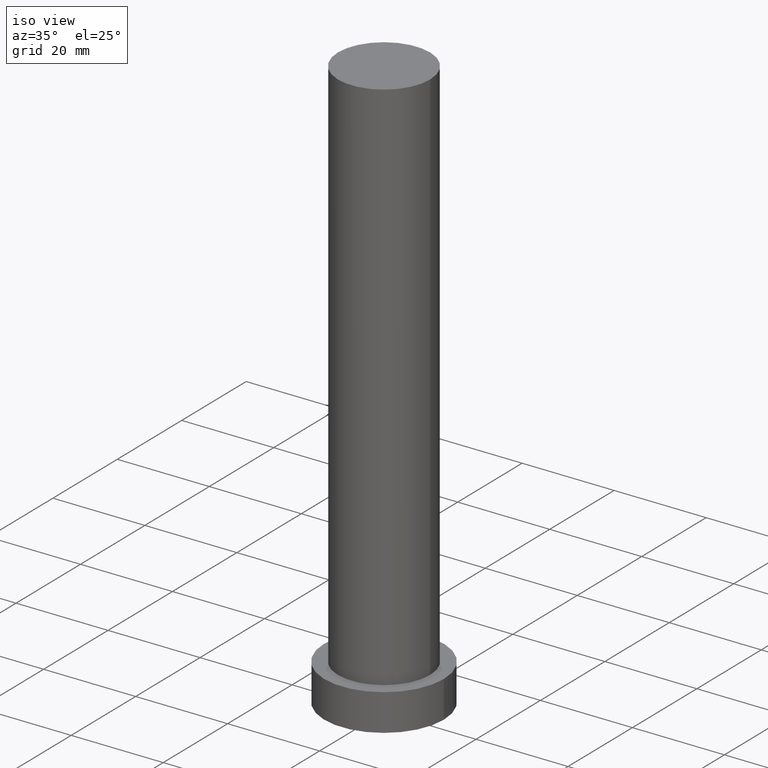
[diagram: clean part render]
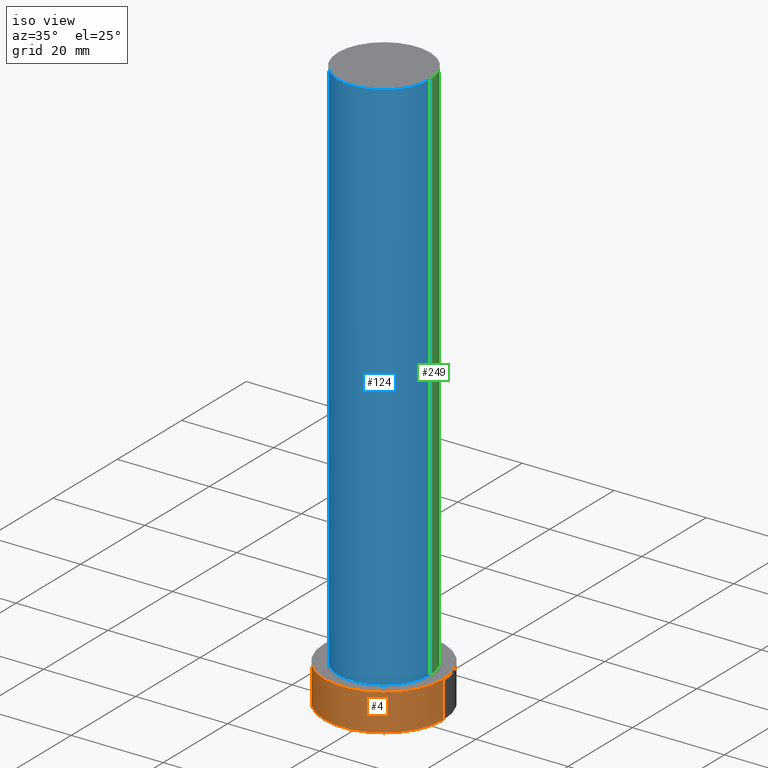
[diagram: same view with three faces highlighted in distinct colors, each labeled with its STEP entity id]
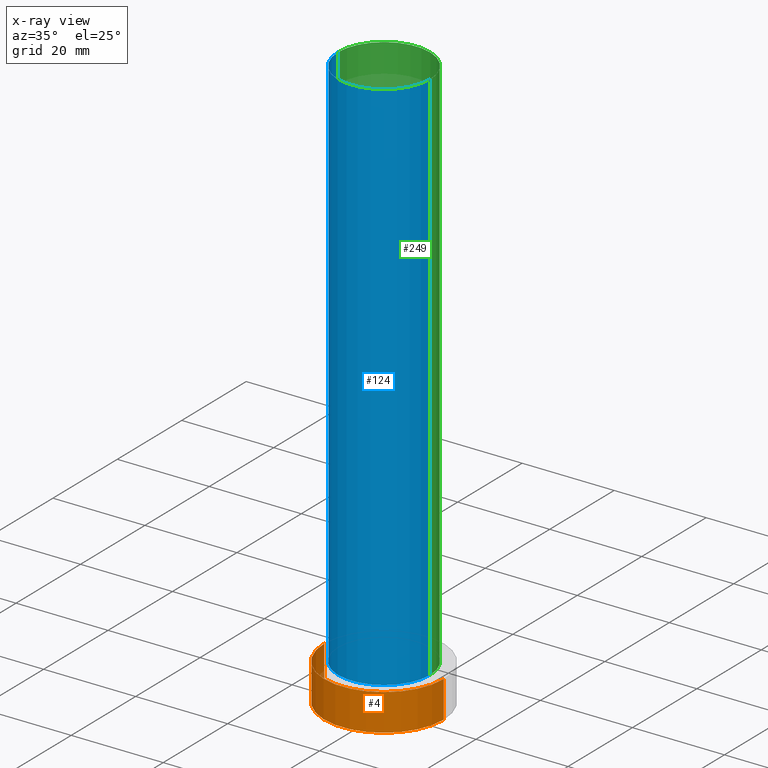
[diagram: x-ray of the same camera — body ghosted, the three highlighted faces saturated]
A machine part, iso view with three faces highlighted in distinct colors.
The next image is the same camera in x-ray (body ghosted, the three faces saturated) — at least one of them is partly hidden behind the body in this view.
Their STEP definitions:

[orange] entity #4 — the highlighted cylindrical surface (partial cylindrical patch) has radius 13 mm, axis along (-0, -0, -1).
#4 = ADVANCED_FACE ( 'NONE', ( #33 ), #31, .T. ) ;
#9 = ORIENTED_EDGE ( 'NONE', *, *, #56, .T. ) ;
#13 = CARTESIAN_POINT ( 'NONE',  ( 13.00000000000000178, 1.592040838891559293E-15, 0.000000000000000000 ) ) ;
#17 = DIRECTION ( 'NONE',  ( -0.000000000000000000, -0.000000000000000000, -1.000000000000000000 ) ) ;
#22 = EDGE_LOOP ( 'NONE', ( #238, #144, #9, #126 ) ) ;
#31 = CYLINDRICAL_SURFACE ( 'NONE', #170, 13.00000000000000178 ) ;
#33 = FACE_OUTER_BOUND ( 'NONE', #22, .T. ) ;
#35 = EDGE_CURVE ( 'NONE', #200, #111, #133, .T. ) ;
#38 = LINE ( 'NONE', #244, #179 ) ;
#39 = AXIS2_PLACEMENT_3D ( 'NONE', #97, #177, #254 ) ;
#42 = VERTEX_POINT ( 'NONE', #169 ) ;
#50 = DIRECTION ( 'NONE',  ( 0.000000000000000000, 0.000000000000000000, 1.000000000000000000 ) ) ;
#53 = CARTESIAN_POINT ( 'NONE',  ( 13.00000000000000178, 1.592040838891559293E-15, 8.000000000000000000 ) ) ;
#56 = EDGE_CURVE ( 'NONE', #143, #42, #38, .T. ) ;
#69 = DIRECTION ( 'NONE',  ( -1.000000000000000000, 0.000000000000000000, 0.000000000000000000 ) ) ;
#71 = CARTESIAN_POINT ( 'NONE',  ( 0.000000000000000000, 0.000000000000000000, 8.000000000000000000 ) ) ;
#85 = CARTESIAN_POINT ( 'NONE',  ( 13.00000000000000178, 1.592040838891559293E-15, 8.000000000000000000 ) ) ;
#92 = VECTOR ( 'NONE', #202, 1000.000000000000000 ) ;
#97 = CARTESIAN_POINT ( 'NONE',  ( 0.000000000000000000, 0.000000000000000000, 0.000000000000000000 ) ) ;
#102 = CIRCLE ( 'NONE', #123, 13.00000000000000178 ) ;
#111 = VERTEX_POINT ( 'NONE', #13 ) ;
#113 = CARTESIAN_POINT ( 'NONE',  ( 0.000000000000000000, 0.000000000000000000, 8.000000000000000000 ) ) ;
#123 = AXIS2_PLACEMENT_3D ( 'NONE', #71, #50, #230 ) ;
#126 = ORIENTED_EDGE ( 'NONE', *, *, #215, .T. ) ;
#133 = LINE ( 'NONE', #85, #92 ) ;
#134 = CIRCLE ( 'NONE', #39, 13.00000000000000178 ) ;
#143 = VERTEX_POINT ( 'NONE', #225 ) ;
#144 = ORIENTED_EDGE ( 'NONE', *, *, #167, .F. ) ;
#166 = DIRECTION ( 'NONE',  ( -0.000000000000000000, -0.000000000000000000, -1.000000000000000000 ) ) ;
#167 = EDGE_CURVE ( 'NONE', #143, #200, #102, .T. ) ;
#169 = CARTESIAN_POINT ( 'NONE',  ( -13.00000000000000178, 0.000000000000000000, 0.000000000000000000 ) ) ;
#170 = AXIS2_PLACEMENT_3D ( 'NONE', #113, #166, #69 ) ;
#177 = DIRECTION ( 'NONE',  ( 0.000000000000000000, 0.000000000000000000, 1.000000000000000000 ) ) ;
#179 = VECTOR ( 'NONE', #17, 1000.000000000000000 ) ;
#200 = VERTEX_POINT ( 'NONE', #53 ) ;
#202 = DIRECTION ( 'NONE',  ( -0.000000000000000000, -0.000000000000000000, -1.000000000000000000 ) ) ;
#215 = EDGE_CURVE ( 'NONE', #42, #111, #134, .T. ) ;
#225 = CARTESIAN_POINT ( 'NONE',  ( -13.00000000000000178, 0.000000000000000000, 8.000000000000000000 ) ) ;
#230 = DIRECTION ( 'NONE',  ( 1.000000000000000000, 0.000000000000000000, 0.000000000000000000 ) ) ;
#238 = ORIENTED_EDGE ( 'NONE', *, *, #35, .F. ) ;
#244 = CARTESIAN_POINT ( 'NONE',  ( -13.00000000000000178, 0.000000000000000000, 8.000000000000000000 ) ) ;
#254 = DIRECTION ( 'NONE',  ( 1.000000000000000000, 0.000000000000000000, 0.000000000000000000 ) ) ;

[blue] entity #124 — the highlighted cylindrical surface (partial cylindrical patch) has radius 10 mm, axis along (-0, -0, -1).
#2 = EDGE_LOOP ( 'NONE', ( #243, #43, #219, #7 ) ) ;
#7 = ORIENTED_EDGE ( 'NONE', *, *, #84, .T. ) ;
#19 = LINE ( 'NONE', #158, #231 ) ;
#21 = AXIS2_PLACEMENT_3D ( 'NONE', #189, #32, #233 ) ;
#27 = VERTEX_POINT ( 'NONE', #114 ) ;
#32 = DIRECTION ( 'NONE',  ( 0.000000000000000000, 0.000000000000000000, 1.000000000000000000 ) ) ;
#43 = ORIENTED_EDGE ( 'NONE', *, *, #78, .F. ) ;
#64 = VERTEX_POINT ( 'NONE', #204 ) ;
#66 = CIRCLE ( 'NONE', #206, 10.00000000000000000 ) ;
#73 = DIRECTION ( 'NONE',  ( -0.000000000000000000, -0.000000000000000000, -1.000000000000000000 ) ) ;
#74 = LINE ( 'NONE', #157, #241 ) ;
#76 = DIRECTION ( 'NONE',  ( -1.000000000000000000, 0.000000000000000000, 0.000000000000000000 ) ) ;
#77 = DIRECTION ( 'NONE',  ( -0.000000000000000000, -0.000000000000000000, -1.000000000000000000 ) ) ;
#78 = EDGE_CURVE ( 'NONE', #64, #218, #66, .T. ) ;
#83 = AXIS2_PLACEMENT_3D ( 'NONE', #90, #73, #76 ) ;
#84 = EDGE_CURVE ( 'NONE', #104, #27, #240, .T. ) ;
#87 = CYLINDRICAL_SURFACE ( 'NONE', #83, 10.00000000000000000 ) ;
#90 = CARTESIAN_POINT ( 'NONE',  ( 0.000000000000000000, 0.000000000000000000, 125.0000000000000000 ) ) ;
#104 = VERTEX_POINT ( 'NONE', #136 ) ;
#114 = CARTESIAN_POINT ( 'NONE',  ( 10.00000000000000000, 1.224646799147353256E-15, 8.000000000000000000 ) ) ;
#117 = EDGE_CURVE ( 'NONE', #64, #104, #74, .T. ) ;
#124 = ADVANCED_FACE ( 'NONE', ( #171 ), #87, .T. ) ;
#136 = CARTESIAN_POINT ( 'NONE',  ( -10.00000000000000000, 0.000000000000000000, 8.000000000000000000 ) ) ;
#138 = CARTESIAN_POINT ( 'NONE',  ( 0.000000000000000000, 0.000000000000000000, 125.0000000000000000 ) ) ;
#148 = DIRECTION ( 'NONE',  ( 0.000000000000000000, 0.000000000000000000, 1.000000000000000000 ) ) ;
#157 = CARTESIAN_POINT ( 'NONE',  ( -10.00000000000000000, 0.000000000000000000, 125.0000000000000000 ) ) ;
#158 = CARTESIAN_POINT ( 'NONE',  ( 10.00000000000000000, 1.224646799147353256E-15, 125.0000000000000000 ) ) ;
#165 = CARTESIAN_POINT ( 'NONE',  ( 10.00000000000000000, 1.224646799147353256E-15, 125.0000000000000000 ) ) ;
#171 = FACE_OUTER_BOUND ( 'NONE', #2, .T. ) ;
#173 = DIRECTION ( 'NONE',  ( 1.000000000000000000, 0.000000000000000000, 0.000000000000000000 ) ) ;
#189 = CARTESIAN_POINT ( 'NONE',  ( 0.000000000000000000, 0.000000000000000000, 8.000000000000000000 ) ) ;
#204 = CARTESIAN_POINT ( 'NONE',  ( -10.00000000000000000, 0.000000000000000000, 125.0000000000000000 ) ) ;
#206 = AXIS2_PLACEMENT_3D ( 'NONE', #138, #148, #173 ) ;
#213 = EDGE_CURVE ( 'NONE', #218, #27, #19, .T. ) ;
#218 = VERTEX_POINT ( 'NONE', #165 ) ;
#219 = ORIENTED_EDGE ( 'NONE', *, *, #117, .T. ) ;
#231 = VECTOR ( 'NONE', #77, 1000.000000000000000 ) ;
#233 = DIRECTION ( 'NONE',  ( 1.000000000000000000, 0.000000000000000000, 0.000000000000000000 ) ) ;
#240 = CIRCLE ( 'NONE', #21, 10.00000000000000000 ) ;
#241 = VECTOR ( 'NONE', #251, 1000.000000000000000 ) ;
#243 = ORIENTED_EDGE ( 'NONE', *, *, #213, .F. ) ;
#251 = DIRECTION ( 'NONE',  ( -0.000000000000000000, -0.000000000000000000, -1.000000000000000000 ) ) ;

[green] entity #249 — the highlighted cylindrical surface (partial cylindrical patch) has radius 10 mm, axis along (-0, -0, -1).
#19 = LINE ( 'NONE', #158, #231 ) ;
#24 = ORIENTED_EDGE ( 'NONE', *, *, #117, .F. ) ;
#27 = VERTEX_POINT ( 'NONE', #114 ) ;
#40 = CIRCLE ( 'NONE', #248, 10.00000000000000000 ) ;
#54 = DIRECTION ( 'NONE',  ( -1.000000000000000000, 0.000000000000000000, 0.000000000000000000 ) ) ;
#60 = DIRECTION ( 'NONE',  ( 0.000000000000000000, 0.000000000000000000, 1.000000000000000000 ) ) ;
#64 = VERTEX_POINT ( 'NONE', #204 ) ;
#74 = LINE ( 'NONE', #157, #241 ) ;
#77 = DIRECTION ( 'NONE',  ( -0.000000000000000000, -0.000000000000000000, -1.000000000000000000 ) ) ;
#82 = CARTESIAN_POINT ( 'NONE',  ( 0.000000000000000000, 0.000000000000000000, 125.0000000000000000 ) ) ;
#89 = DIRECTION ( 'NONE',  ( -0.000000000000000000, -0.000000000000000000, -1.000000000000000000 ) ) ;
#98 = EDGE_CURVE ( 'NONE', #218, #64, #40, .T. ) ;
#104 = VERTEX_POINT ( 'NONE', #136 ) ;
#105 = ORIENTED_EDGE ( 'NONE', *, *, #213, .T. ) ;
#106 = ORIENTED_EDGE ( 'NONE', *, *, #182, .T. ) ;
#114 = CARTESIAN_POINT ( 'NONE',  ( 10.00000000000000000, 1.224646799147353256E-15, 8.000000000000000000 ) ) ;
#117 = EDGE_CURVE ( 'NONE', #64, #104, #74, .T. ) ;
#118 = DIRECTION ( 'NONE',  ( 1.000000000000000000, 0.000000000000000000, 0.000000000000000000 ) ) ;
#136 = CARTESIAN_POINT ( 'NONE',  ( -10.00000000000000000, 0.000000000000000000, 8.000000000000000000 ) ) ;
#139 = DIRECTION ( 'NONE',  ( 1.000000000000000000, 0.000000000000000000, 0.000000000000000000 ) ) ;
#157 = CARTESIAN_POINT ( 'NONE',  ( -10.00000000000000000, 0.000000000000000000, 125.0000000000000000 ) ) ;
#158 = CARTESIAN_POINT ( 'NONE',  ( 10.00000000000000000, 1.224646799147353256E-15, 125.0000000000000000 ) ) ;
#165 = CARTESIAN_POINT ( 'NONE',  ( 10.00000000000000000, 1.224646799147353256E-15, 125.0000000000000000 ) ) ;
#182 = EDGE_CURVE ( 'NONE', #27, #104, #196, .T. ) ;
#185 = EDGE_LOOP ( 'NONE', ( #198, #105, #106, #24 ) ) ;
#188 = AXIS2_PLACEMENT_3D ( 'NONE', #82, #89, #54 ) ;
#196 = CIRCLE ( 'NONE', #236, 10.00000000000000000 ) ;
#198 = ORIENTED_EDGE ( 'NONE', *, *, #98, .F. ) ;
#201 = FACE_OUTER_BOUND ( 'NONE', #185, .T. ) ;
#204 = CARTESIAN_POINT ( 'NONE',  ( -10.00000000000000000, 0.000000000000000000, 125.0000000000000000 ) ) ;
#213 = EDGE_CURVE ( 'NONE', #218, #27, #19, .T. ) ;
#218 = VERTEX_POINT ( 'NONE', #165 ) ;
#229 = CYLINDRICAL_SURFACE ( 'NONE', #188, 10.00000000000000000 ) ;
#231 = VECTOR ( 'NONE', #77, 1000.000000000000000 ) ;
#235 = CARTESIAN_POINT ( 'NONE',  ( 0.000000000000000000, 0.000000000000000000, 125.0000000000000000 ) ) ;
#236 = AXIS2_PLACEMENT_3D ( 'NONE', #252, #60, #139 ) ;
#241 = VECTOR ( 'NONE', #251, 1000.000000000000000 ) ;
#248 = AXIS2_PLACEMENT_3D ( 'NONE', #235, #250, #118 ) ;
#249 = ADVANCED_FACE ( 'NONE', ( #201 ), #229, .T. ) ;
#250 = DIRECTION ( 'NONE',  ( 0.000000000000000000, 0.000000000000000000, 1.000000000000000000 ) ) ;
#251 = DIRECTION ( 'NONE',  ( -0.000000000000000000, -0.000000000000000000, -1.000000000000000000 ) ) ;
#252 = CARTESIAN_POINT ( 'NONE',  ( 0.000000000000000000, 0.000000000000000000, 8.000000000000000000 ) ) ;